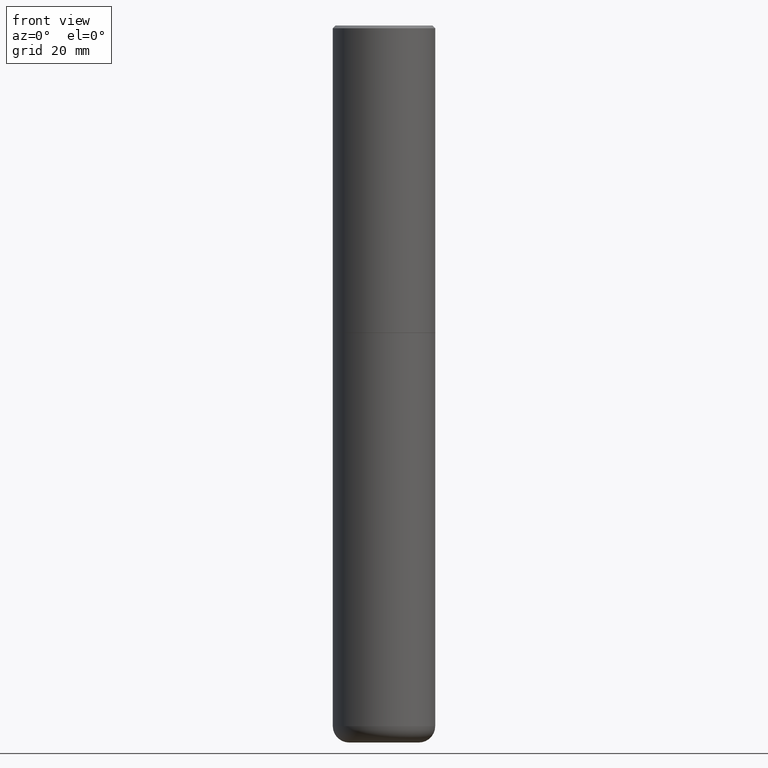
[diagram: clean part render]
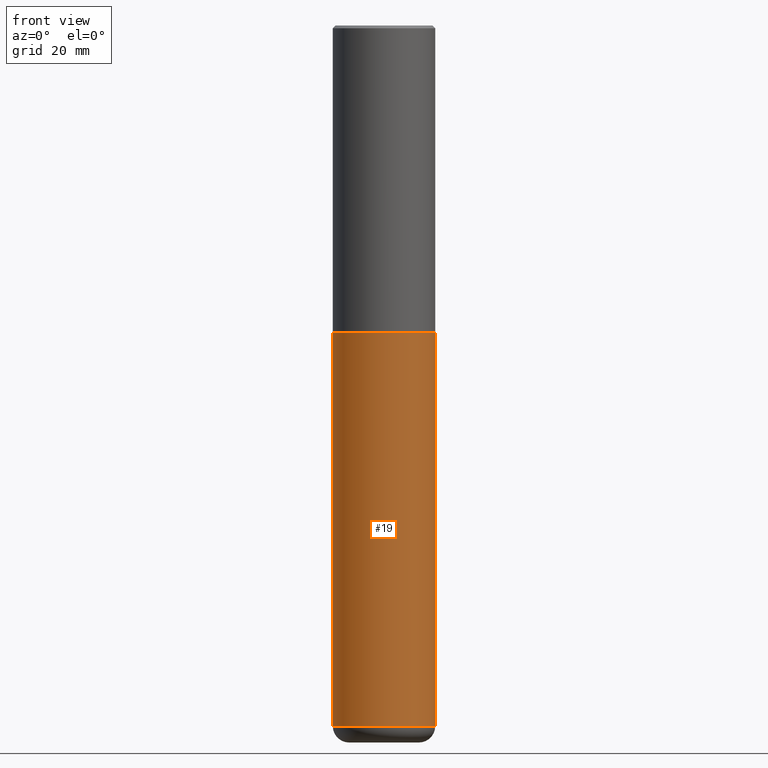
[diagram: same view with one face highlighted and labeled with its STEP entity id]
A machine part, front view. The second image highlights one B-rep face of the part: STEP entity #19.
In plain terms, the highlighted cylindrical surface (partial cylindrical patch) has radius 9.525 mm, axis along (-0, 0, 1).
Its self-contained STEP definition (entity closure, byte-faithful):
#7 = ORIENTED_EDGE ( 'NONE', *, *, #45, .T. ) ;
#15 = DIRECTION ( 'NONE',  ( -2.445468806185136597E-29, 3.491481338843145583E-15, 1.000000000000000000 ) ) ;
#16 = EDGE_CURVE ( 'NONE', #379, #375, #161, .T. ) ;
#19 = ADVANCED_FACE ( 'NONE', ( #210 ), #282, .T. ) ;
#45 = EDGE_CURVE ( 'NONE', #359, #330, #91, .T. ) ;
#55 = AXIS2_PLACEMENT_3D ( 'NONE', #77, #15, #212 ) ;
#67 = ORIENTED_EDGE ( 'NONE', *, *, #228, .T. ) ;
#76 = VECTOR ( 'NONE', #215, 39.37007874015748143 ) ;
#77 = CARTESIAN_POINT ( 'NONE',  ( 1.254525497572975083E-28, -1.791129926826533659E-14, -5.129999999999999893 ) ) ;
#83 = ORIENTED_EDGE ( 'NONE', *, *, #16, .F. ) ;
#91 = CIRCLE ( 'NONE', #55, 0.3750000000000000555 ) ;
#103 = CARTESIAN_POINT ( 'NONE',  ( -0.3750000000000000555, -1.021903088123083182E-14, -2.250000000000000000 ) ) ;
#106 = ORIENTED_EDGE ( 'NONE', *, *, #109, .F. ) ;
#107 = DIRECTION ( 'NONE',  ( 1.000000000000000000, -6.982962677686264344E-15, 0.000000000000000000 ) ) ;
#109 = EDGE_CURVE ( 'NONE', #359, #379, #120, .T. ) ;
#120 = LINE ( 'NONE', #186, #76 ) ;
#121 = CARTESIAN_POINT ( 'NONE',  ( 0.3750000000000000555, -2.618611004132350016E-15, 1.828566290923476203E-29 ) ) ;
#161 = CIRCLE ( 'NONE', #364, 0.3750000000000000555 ) ;
#168 = CARTESIAN_POINT ( 'NONE',  ( -0.3749999999999996669, -1.524676400916496405E-14, -5.129999999999999893 ) ) ;
#176 = DIRECTION ( 'NONE',  ( -2.445468806185136597E-29, 3.491481338843145583E-15, 1.000000000000000000 ) ) ;
#186 = CARTESIAN_POINT ( 'NONE',  ( -0.3750000000000000555, 2.664535259100376091E-15, -1.844600658845589598E-29 ) ) ;
#199 = CARTESIAN_POINT ( 'NONE',  ( 0.3749999999999996669, -2.052991027239768345E-14, -5.129999999999999893 ) ) ;
#206 = EDGE_LOOP ( 'NONE', ( #106, #7, #67, #83 ) ) ;
#210 = FACE_OUTER_BOUND ( 'NONE', #206, .T. ) ;
#212 = DIRECTION ( 'NONE',  ( 1.000000000000000000, -6.982962677686261189E-15, 0.000000000000000000 ) ) ;
#215 = DIRECTION ( 'NONE',  ( -2.445468806185136877E-29, 3.491481338843145188E-15, 1.000000000000000000 ) ) ;
#228 = EDGE_CURVE ( 'NONE', #330, #375, #413, .T. ) ;
#248 = AXIS2_PLACEMENT_3D ( 'NONE', #410, #338, #307 ) ;
#272 = CARTESIAN_POINT ( 'NONE',  ( 0.3750000000000000555, -1.047444401652942689E-14, -2.250000000000000000 ) ) ;
#282 = CYLINDRICAL_SURFACE ( 'NONE', #248, 0.3750000000000000555 ) ;
#307 = DIRECTION ( 'NONE',  ( 1.000000000000000000, -6.982962677686265922E-15, 4.876176775795935793E-29 ) ) ;
#330 = VERTEX_POINT ( 'NONE', #199 ) ;
#338 = DIRECTION ( 'NONE',  ( -2.445468806185136597E-29, 3.491481338843145583E-15, 1.000000000000000000 ) ) ;
#342 = DIRECTION ( 'NONE',  ( -2.445468806185136877E-29, 3.491481338843145188E-15, 1.000000000000000000 ) ) ;
#359 = VERTEX_POINT ( 'NONE', #168 ) ;
#364 = AXIS2_PLACEMENT_3D ( 'NONE', #399, #176, #107 ) ;
#365 = VECTOR ( 'NONE', #342, 39.37007874015748143 ) ;
#375 = VERTEX_POINT ( 'NONE', #272 ) ;
#379 = VERTEX_POINT ( 'NONE', #103 ) ;
#399 = CARTESIAN_POINT ( 'NONE',  ( 5.502304813916557343E-29, -7.855833012397078448E-15, -2.250000000000000000 ) ) ;
#410 = CARTESIAN_POINT ( 'NONE',  ( 0.000000000000000000, 0.000000000000000000, 0.000000000000000000 ) ) ;
#413 = LINE ( 'NONE', #121, #365 ) ;